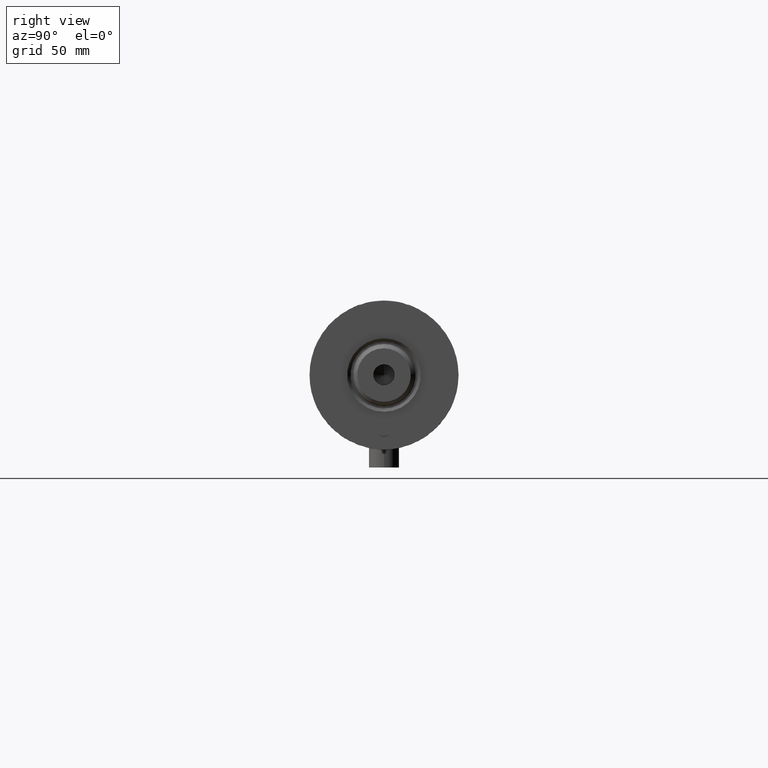
[diagram: clean part render]
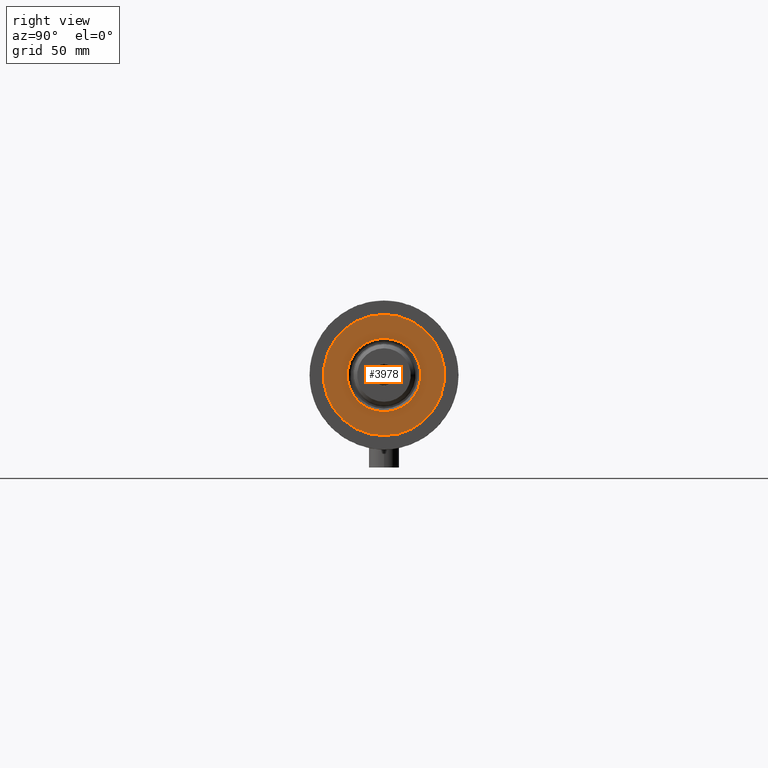
[diagram: same view with one face highlighted and labeled with its STEP entity id]
A machine part, right view. The second image highlights one B-rep face of the part: STEP entity #3978.
In plain terms, the highlighted planar face has unit normal (1, 0, -0).
Its self-contained STEP definition (entity closure, byte-faithful):
#21 = FACE_OUTER_BOUND ( 'NONE', #3598, .T. ) ;
#112 = CIRCLE ( 'NONE', #4359, 14.54999999999997939 ) ;
#118 = CARTESIAN_POINT ( 'NONE',  ( 0.000000000000000000, 0.000000000000000000, 41.00000000000000000 ) ) ;
#157 = AXIS2_PLACEMENT_3D ( 'NONE', #118, #611, #2732 ) ;
#450 = VERTEX_POINT ( 'NONE', #2536 ) ;
#589 = EDGE_CURVE ( 'NONE', #450, #2548, #112, .T. ) ;
#611 = DIRECTION ( 'NONE',  ( -0.000000000000000000, -0.000000000000000000, -1.000000000000000000 ) ) ;
#622 = AXIS2_PLACEMENT_3D ( 'NONE', #2998, #2270, #3384 ) ;
#962 = CARTESIAN_POINT ( 'NONE',  ( 14.54999999999997939, 0.000000000000000000, 41.00000000000000000 ) ) ;
#996 = EDGE_LOOP ( 'NONE', ( #3368, #3090 ) ) ;
#1136 = PLANE ( 'NONE',  #622 ) ;
#1189 = CARTESIAN_POINT ( 'NONE',  ( 0.000000000000000000, 0.000000000000000000, 41.00000000000000000 ) ) ;
#1417 = VERTEX_POINT ( 'NONE', #2670 ) ;
#1641 = CIRCLE ( 'NONE', #4180, 24.00000000000000355 ) ;
#1862 = FACE_BOUND ( 'NONE', #996, .T. ) ;
#2236 = ORIENTED_EDGE ( 'NONE', *, *, #3512, .T. ) ;
#2270 = DIRECTION ( 'NONE',  ( 0.000000000000000000, 0.000000000000000000, 1.000000000000000000 ) ) ;
#2321 = CIRCLE ( 'NONE', #4326, 24.00000000000000355 ) ;
#2347 = DIRECTION ( 'NONE',  ( -0.000000000000000000, -0.000000000000000000, -1.000000000000000000 ) ) ;
#2409 = CARTESIAN_POINT ( 'NONE',  ( 24.00000000000000355, 2.939152317953648289E-15, 41.00000000000000000 ) ) ;
#2479 = CARTESIAN_POINT ( 'NONE',  ( 0.000000000000000000, 0.000000000000000000, 41.00000000000000000 ) ) ;
#2519 = CARTESIAN_POINT ( 'NONE',  ( 0.000000000000000000, 0.000000000000000000, 41.00000000000000000 ) ) ;
#2536 = CARTESIAN_POINT ( 'NONE',  ( -14.54999999999997939, 1.781861092759396721E-15, 41.00000000000000000 ) ) ;
#2548 = VERTEX_POINT ( 'NONE', #962 ) ;
#2670 = CARTESIAN_POINT ( 'NONE',  ( -24.00000000000000355, 0.000000000000000000, 41.00000000000000000 ) ) ;
#2732 = DIRECTION ( 'NONE',  ( 1.000000000000000000, 0.000000000000000000, 0.000000000000000000 ) ) ;
#2998 = CARTESIAN_POINT ( 'NONE',  ( 0.000000000000000000, 0.000000000000000000, 41.00000000000000000 ) ) ;
#3045 = EDGE_CURVE ( 'NONE', #2548, #450, #4402, .T. ) ;
#3090 = ORIENTED_EDGE ( 'NONE', *, *, #589, .T. ) ;
#3368 = ORIENTED_EDGE ( 'NONE', *, *, #3045, .T. ) ;
#3384 = DIRECTION ( 'NONE',  ( 1.000000000000000000, 0.000000000000000000, -0.000000000000000000 ) ) ;
#3400 = ORIENTED_EDGE ( 'NONE', *, *, #4572, .T. ) ;
#3512 = EDGE_CURVE ( 'NONE', #4489, #1417, #2321, .T. ) ;
#3598 = EDGE_LOOP ( 'NONE', ( #3400, #2236 ) ) ;
#3612 = DIRECTION ( 'NONE',  ( 1.000000000000000000, 0.000000000000000000, 0.000000000000000000 ) ) ;
#3821 = DIRECTION ( 'NONE',  ( 1.000000000000000000, 0.000000000000000000, 0.000000000000000000 ) ) ;
#3912 = DIRECTION ( 'NONE',  ( 1.000000000000000000, 0.000000000000000000, 0.000000000000000000 ) ) ;
#3978 = ADVANCED_FACE ( 'NONE', ( #1862, #21 ), #1136, .T. ) ;
#3981 = DIRECTION ( 'NONE',  ( 0.000000000000000000, 0.000000000000000000, 1.000000000000000000 ) ) ;
#4180 = AXIS2_PLACEMENT_3D ( 'NONE', #2479, #3981, #3912 ) ;
#4326 = AXIS2_PLACEMENT_3D ( 'NONE', #2519, #4331, #3612 ) ;
#4331 = DIRECTION ( 'NONE',  ( 0.000000000000000000, 0.000000000000000000, 1.000000000000000000 ) ) ;
#4359 = AXIS2_PLACEMENT_3D ( 'NONE', #1189, #2347, #3821 ) ;
#4402 = CIRCLE ( 'NONE', #157, 14.54999999999997939 ) ;
#4489 = VERTEX_POINT ( 'NONE', #2409 ) ;
#4572 = EDGE_CURVE ( 'NONE', #1417, #4489, #1641, .T. ) ;